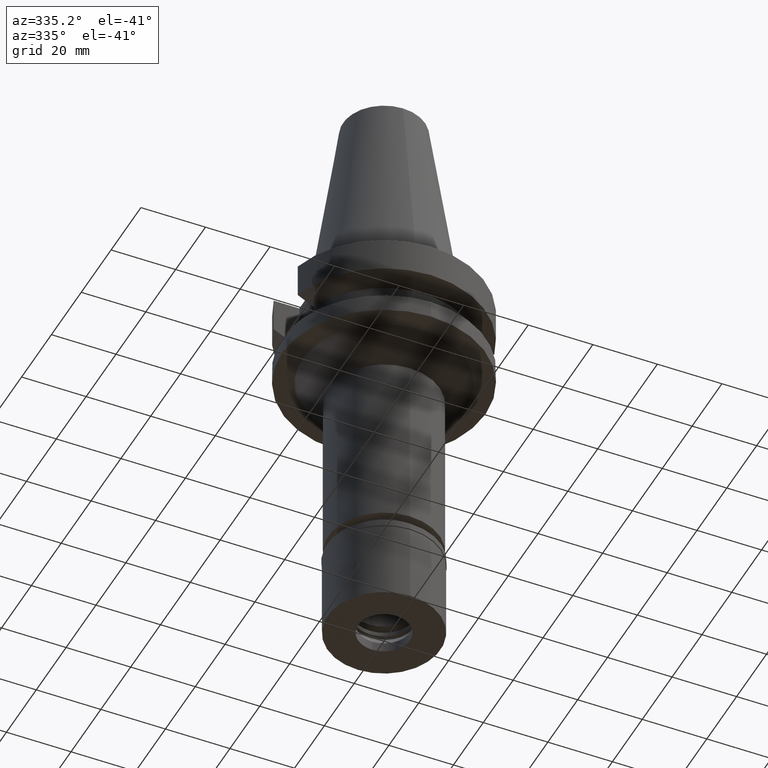
[diagram: clean part render]
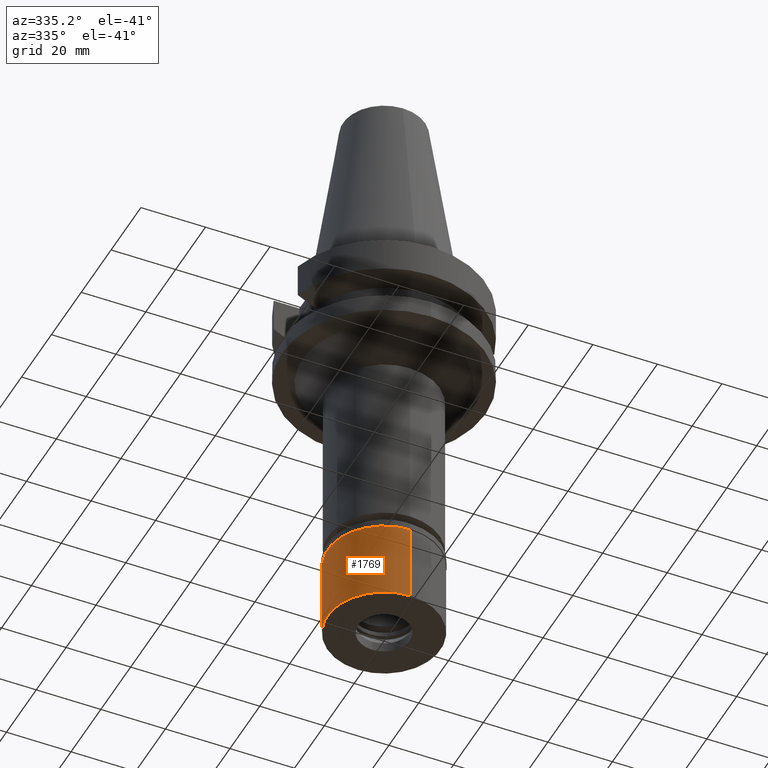
[diagram: same view with one face highlighted and labeled with its STEP entity id]
A machine part, auxiliary view. The second image highlights one B-rep face of the part: STEP entity #1769.
In plain terms, the highlighted cylindrical surface (partial cylindrical patch) has radius 17.5 mm, axis along (0, 0, -1).
Its self-contained STEP definition (entity closure, byte-faithful):
#33 = VERTEX_POINT ( 'NONE', #470 ) ;
#271 = DIRECTION ( 'NONE',  ( 0.0000000000000000000, 0.0000000000000000000, -1.000000000000000000 ) ) ;
#288 = CARTESIAN_POINT ( 'NONE',  ( 0.0000000000000000000, -17.50000000000000000, -2.100000000000000089 ) ) ;
#298 = DIRECTION ( 'NONE',  ( 0.0000000000000000000, 0.0000000000000000000, 1.000000000000000000 ) ) ;
#376 = VERTEX_POINT ( 'NONE', #612 ) ;
#430 = CIRCLE ( 'NONE', #840, 17.50000000000000000 ) ;
#470 = CARTESIAN_POINT ( 'NONE',  ( 0.0000000000000000000, 17.50000000000000000, -2.100000000000000089 ) ) ;
#471 = DIRECTION ( 'NONE',  ( 0.0000000000000000000, -1.000000000000000000, 0.0000000000000000000 ) ) ;
#574 = FACE_OUTER_BOUND ( 'NONE', #1648, .T. ) ;
#612 = CARTESIAN_POINT ( 'NONE',  ( 0.0000000000000000000, -17.50000000000000000, -2.100000000000000089 ) ) ;
#749 = EDGE_CURVE ( 'NONE', #33, #2849, #1445, .T. ) ;
#777 = DIRECTION ( 'NONE',  ( 0.0000000000000000000, 0.0000000000000000000, -1.000000000000000000 ) ) ;
#801 = LINE ( 'NONE', #288, #1223 ) ;
#840 = AXIS2_PLACEMENT_3D ( 'NONE', #2618, #271, #1008 ) ;
#896 = CARTESIAN_POINT ( 'NONE',  ( 0.0000000000000000000, -17.50000000000000000, -26.70000000000000284 ) ) ;
#948 = ORIENTED_EDGE ( 'NONE', *, *, #749, .T. ) ;
#1008 = DIRECTION ( 'NONE',  ( 0.0000000000000000000, -1.000000000000000000, 0.0000000000000000000 ) ) ;
#1057 = EDGE_CURVE ( 'NONE', #376, #2605, #801, .T. ) ;
#1124 = DIRECTION ( 'NONE',  ( 0.0000000000000000000, 0.0000000000000000000, -1.000000000000000000 ) ) ;
#1223 = VECTOR ( 'NONE', #1234, 1000.000000000000000 ) ;
#1234 = DIRECTION ( 'NONE',  ( 0.0000000000000000000, 0.0000000000000000000, -1.000000000000000000 ) ) ;
#1445 = LINE ( 'NONE', #2695, #3106 ) ;
#1534 = CYLINDRICAL_SURFACE ( 'NONE', #1743, 17.50000000000000000 ) ;
#1610 = EDGE_CURVE ( 'NONE', #2849, #2605, #2337, .T. ) ;
#1648 = EDGE_LOOP ( 'NONE', ( #2627, #2665, #2526, #948 ) ) ;
#1743 = AXIS2_PLACEMENT_3D ( 'NONE', #1927, #777, #471 ) ;
#1762 = CARTESIAN_POINT ( 'NONE',  ( 0.0000000000000000000, 0.0000000000000000000, -26.70000000000000284 ) ) ;
#1769 = ADVANCED_FACE ( 'NONE', ( #574 ), #1534, .T. ) ;
#1826 = EDGE_CURVE ( 'NONE', #376, #33, #430, .T. ) ;
#1927 = CARTESIAN_POINT ( 'NONE',  ( 0.0000000000000000000, 0.0000000000000000000, 0.0000000000000000000 ) ) ;
#2337 = CIRCLE ( 'NONE', #2590, 17.50000000000000000 ) ;
#2526 = ORIENTED_EDGE ( 'NONE', *, *, #1826, .T. ) ;
#2590 = AXIS2_PLACEMENT_3D ( 'NONE', #1762, #298, #2853 ) ;
#2605 = VERTEX_POINT ( 'NONE', #896 ) ;
#2618 = CARTESIAN_POINT ( 'NONE',  ( 0.0000000000000000000, 0.0000000000000000000, -2.100000000000000089 ) ) ;
#2623 = CARTESIAN_POINT ( 'NONE',  ( 0.0000000000000000000, 17.50000000000000000, -26.70000000000000284 ) ) ;
#2627 = ORIENTED_EDGE ( 'NONE', *, *, #1610, .T. ) ;
#2665 = ORIENTED_EDGE ( 'NONE', *, *, #1057, .F. ) ;
#2695 = CARTESIAN_POINT ( 'NONE',  ( 0.0000000000000000000, 17.50000000000000000, -2.100000000000000089 ) ) ;
#2849 = VERTEX_POINT ( 'NONE', #2623 ) ;
#2853 = DIRECTION ( 'NONE',  ( 0.0000000000000000000, 1.000000000000000000, 0.0000000000000000000 ) ) ;
#3106 = VECTOR ( 'NONE', #1124, 1000.000000000000000 ) ;